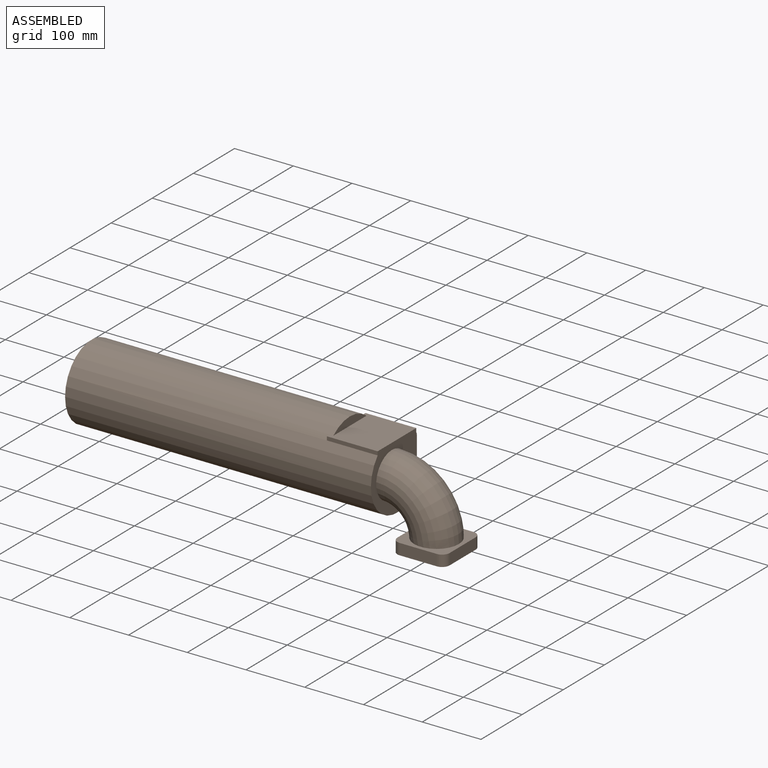
[diagram: assembled view]
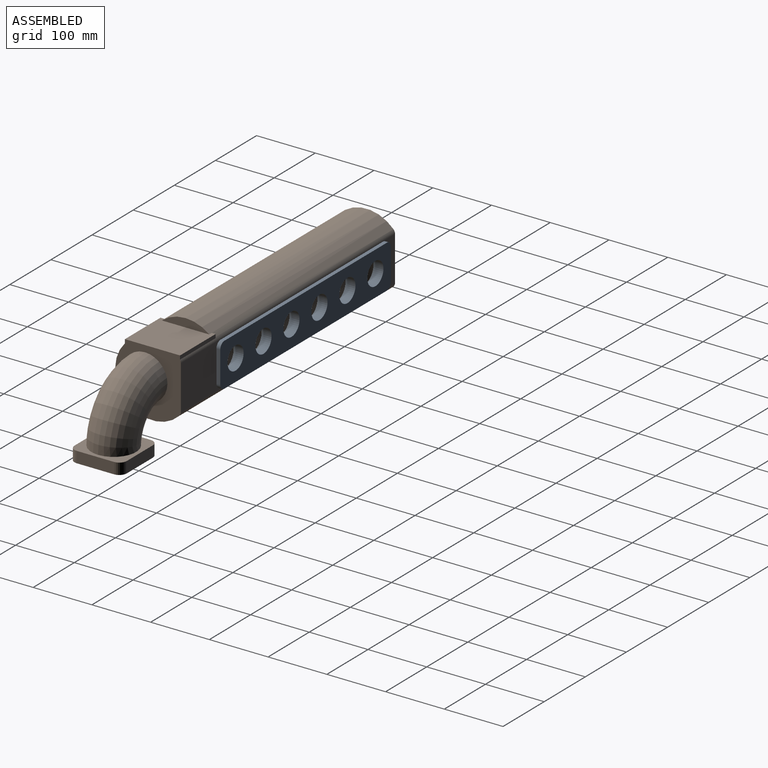
[diagram: assembled view, second angle]
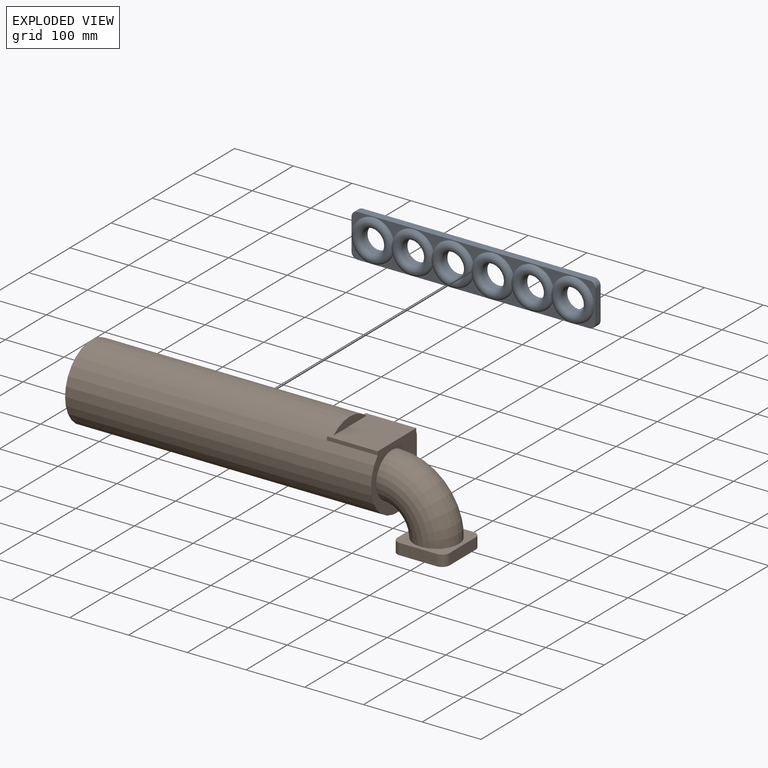
[diagram: exploded view]
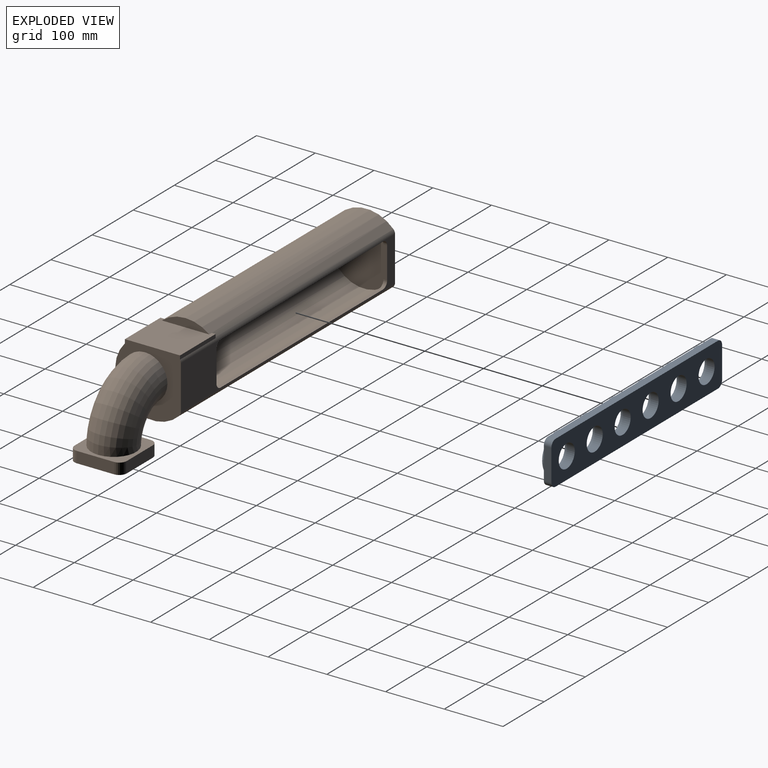
[diagram: exploded view, second angle]
ASSEMBLY  parts=2 mates=2
PART A: 22 faces, bbox 416.9x20.9x76.9 mm
  f0: plane 415x73.74mm, normal (0,-1,0), area 6966.2mm2, adj f1,f2,f3,f4,f6,f7,f8,f9
  f1: plane 53.74x12.85mm, normal (1,0,0), area 690.6mm2, adj f0,f5,f6,f9
  f2: plane 395x12.85mm, normal (0,0,1), area 5075.8mm2, adj f0,f5,f6,f7
  f3: plane 53.74x12.85mm, normal (-1,0,0), area 690.6mm2, adj f0,f5,f7,f8
  f4: plane 395x12.85mm, normal (0,0,-1), area 5075.8mm2, adj f0,f5,f8,f9
  f5: plane 415x73.74mm, normal (0,1,0), area 23348.7mm2, adj f1,f2,f3,f4,f6,f7,f8,f9
  f6: cylinder r=10mm len=12.85mm, axis (0,-1,0), area 201.8mm2, adj f0,f1,f2,f5
  f7: cylinder r=10mm len=12.85mm, axis (0,1,0), area 201.8mm2, adj f0,f2,f3,f5
  f8: cylinder r=10mm len=12.85mm, axis (0,-1,0), area 201.8mm2, adj f0,f3,f4,f5
  f9: cylinder r=10mm len=12.85mm, axis (0,1,0), area 201.8mm2, adj f0,f1,f4,f5
  f10: cylinder r=19.5mm len=39mm, axis (0,-1,0), area 1574.4mm2, adj f5,f16
  f11: cylinder r=19.5mm len=39mm, axis (0,-1,0), area 1574.4mm2, adj f5,f17
  f12: cylinder r=19.5mm len=39mm, axis (0,-1,0), area 1574.4mm2, adj f5,f18
  f13: cylinder r=19.5mm len=39mm, axis (0,-1,0), area 1574.4mm2, adj f5,f19
  f14: cylinder r=19.5mm len=39mm, axis (0,-1,0), area 1574.4mm2, adj f5,f20
  f15: cylinder r=19.5mm len=39mm, axis (0,-1,0), area 1574.4mm2, adj f5,f21
  f16: torus R=27.5mm, axis (0,1,0), area 4262.5mm2, adj f0,f10,f17
  f17: torus R=27.5mm, axis (0,1,0), area 4182.3mm2, adj f0,f11,f16,f18
  f18: torus R=27.5mm, axis (0,1,0), area 4182.3mm2, adj f0,f12,f17,f19
  f19: torus R=27.5mm, axis (0,1,0), area 4182.3mm2, adj f0,f13,f18,f20
  f20: torus R=27.5mm, axis (0,1,0), area 4182.3mm2, adj f0,f14,f19,f21
  f21: torus R=27.5mm, axis (0,1,0), area 4262.5mm2, adj f0,f15,f20
PART B: 42 faces, bbox 644.4x158.8x111.8 mm
  f0: cylinder r=63.5mm len=520.7mm, axis (1,0,0), area 148668.8mm2, adj f1,f11,f12,f14,f36,f38,f39,f40
  f1: cylinder r=8.89mm len=520.7mm, axis (1,0,0), area 3396.8mm2, adj f0,f11,f13,f14,f37,f38
  f2: plane 99.82x99.06mm, normal (-1,0,0), area 3340.4mm2, adj f3,f5,f6,f7,f8,f34
  f3: torus R=41.27mm, axis (1,0,0), area 2333.4mm2, adj f2,f10
  f4: plane 114.3x99.06mm, normal (1,0,0), area 9447.3mm2, adj f5,f6,f7,f8
  f5: cylinder r=2.54mm len=508mm, axis (1,0,0), area 987.9mm2, adj f2,f4,f6,f8
  f6: plane 508x75.69mm, normal (0,0,1), area 7934.4mm2, adj f2,f4,f5,f7,f15,f16,f17,f18
  f7: cylinder r=2.54mm len=508mm, axis (1,0,0), area 987.9mm2, adj f2,f4,f6,f8
  f8: cylinder r=57.15mm len=508mm, axis (1,0,0), area 131288.7mm2, adj f2,f4,f5,f7,f34,f35
  f9: torus R=76.2mm, axis (0,0,-1), area 28653.6mm2, adj f14,f29
  f10: torus R=76.2mm, axis (0,0,-1), area 26265.8mm2, adj f3,f27
  f11: plane 127x111.76mm, normal (-1,0,0), area 11803.7mm2, adj f0,f1,f12,f13
  f12: cylinder r=8.89mm len=520.7mm, axis (1,0,0), area 3544.2mm2, adj f0,f11,f13,f14
  f13: plane 520.7x75.69mm, normal (0,0,-1), area 8895.7mm2, adj f1,f11,f12,f14,f15,f16,f17,f18
  f14: plane 112.52x111.76mm, normal (1,0,0), area 6483.7mm2, adj f0,f1,f9,f12,f13,f37,f39,f40
  f15: cylinder r=10mm len=10mm, axis (0,0,-1), area 99.7mm2, adj f6,f13,f16,f22
  f16: plane 395x6.35mm, normal (0,-1,0), area 2508.2mm2, adj f6,f13,f15,f17
  f17: cylinder r=10mm len=10mm, axis (0,0,-1), area 99.7mm2, adj f6,f13,f16,f18
  f18: plane 53.74x6.35mm, normal (-1,0,0), area 341.2mm2, adj f6,f13,f17,f19
  f19: cylinder r=10mm len=10mm, axis (0,0,-1), area 99.7mm2, adj f6,f13,f18,f20
  f20: plane 395x6.35mm, normal (0,1,0), area 2508.2mm2, adj f6,f13,f19,f21
  f21: cylinder r=10mm len=10mm, axis (0,0,-1), area 99.7mm2, adj f6,f13,f20,f22
  f22: plane 53.74x6.35mm, normal (1,0,0), area 341.2mm2, adj f6,f13,f15,f21
  f23: plane 63.5x19.05mm, normal (1,0,0), area 1209.7mm2, adj f28,f29,f30,f33
  f24: plane 63.5x19.05mm, normal (0,0,1), area 1209.7mm2, adj f28,f29,f30,f31
  f25: plane 63.5x19.05mm, normal (-1,0,0), area 1209.7mm2, adj f28,f29,f31,f32
  f26: plane 63.5x19.05mm, normal (0,0,-1), area 1209.7mm2, adj f28,f29,f32,f33
  f27: cylinder r=34.92mm len=69.85mm, axis (0,1,0), area 4180.3mm2, adj f10,f28
  f28: plane 88.9x88.9mm, normal (0,-1,0), area 3932.8mm2, adj f23,f24,f25,f26,f27,f30,f31,f32
  f29: plane 88.9x88.9mm, normal (0,1,0), area 3204.4mm2, adj f9,f23,f24,f25,f26,f30,f31,f32
  f30: cylinder r=12.7mm len=19.05mm, axis (0,-1,0), area 380mm2, adj f23,f24,f28,f29
  f31: cylinder r=12.7mm len=19.05mm, axis (0,1,0), area 380mm2, adj f24,f25,f28,f29
  f32: cylinder r=12.7mm len=19.05mm, axis (0,-1,0), area 380mm2, adj f25,f26,f28,f29
  f33: cylinder r=12.7mm len=19.05mm, axis (0,1,0), area 380mm2, adj f23,f26,f28,f29
  f34: plane 80.17x76.03mm, normal (0,-1,0), area 6095.6mm2, adj f2,f8,f35
  f35: plane 76.03x14.48mm, normal (-1,0,0), area 754.7mm2, adj f8,f34
  f36: plane 6.66x6.35mm, normal (-1,0,0), area 20.1mm2, adj f0,f39,f40
  f37: plane 86.52x6.35mm, normal (0,0,-1), area 549.4mm2, adj f1,f14,f38,f40
  f38: plane 6.47x6.35mm, normal (-1,0,0), area 19mm2, adj f0,f1,f37,f40
  f39: plane 86.52x6.35mm, normal (0,0,1), area 549.4mm2, adj f0,f14,f36,f40
  f40: plane 93.86x86.52mm, normal (0,1,0), area 7608.3mm2, adj f0,f14,f36,f37,f38,f39,f41
  f41: plane 80.72x14.48mm, normal (1,0,0), area 798.8mm2, adj f0,f40
PLACE A rot(axis=(-1,0,0),0deg) t=(-667.34,-173.4,-81.6)mm
PLACE B rot(axis=(1,0,0),90deg) t=(-633.67,-228.16,-81.6)mm
MATE planar A.f7 <-> B.f6  axis (0,-1,0) through (-864.84,-186.25,-54.73)mm
MATE planar A.f1 <-> B.f18  axis (1,0,0) through (-459.84,-179.83,-81.6)mm
